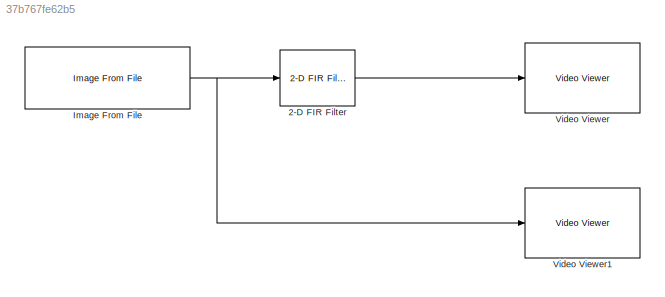
MODEL slx_37b767fe62b5
KIND model
BLOCK [Reference] 2-D FIR Filter  REF=visionfilter/2-D FIR Filter
  LockScale = off
  Ports = [1, 1]
  SourceBlock = visionfilter/2-D FIR Filter
  SourceType = 2-D FIR Filter
  accumDataTypeStr = Inherit: Same as product output
  accumFracLength = 10
  accumLastDataTypeStr = Inherit: Same as product output
  accumMode = Same as product output
  accumWordLength = 32
  filtSrc = Specify via dialog
  filterMtrx = [1 0; 0 -1]
  firstCoeffDataTypeStr = fixdt(1,16)
  firstCoeffFracLength = 14
  firstCoeffLastDataTypeStr = fixdt(1,16)
  firstCoeffMax = []
  firstCoeffMin = []
  firstCoeffMode = Specify word length
  firstCoeffSignedness = Signed
  firstCoeffWordLength = 16
  horizontalFilter = [4 0]
  method = Convolution
  outSize = Full
  outputDataTypeStr = Inherit: Same as input
  outputFracLength = 12
  outputLastDataTypeStr = Inherit: Same as input
  outputMax = []
  outputMin = []
  outputMode = Same as input
  outputSignedness = Auto
  outputWordLength = 32
  overflowMode = off
  padSrc = Specify via dialog
  padType = Constant
  padVal = 0
  prodOutputDataTypeStr = fixdt([],32,10)
  prodOutputFracLength = 10
  prodOutputLastDataTypeStr = fixdt([],32,10)
  prodOutputMode = Binary point scaling
  prodOutputWordLength = 32
  roundingMode = Floor
  separable = off
  verticalFilter = [4 0]
BLOCK [Reference] Image From File  REF=visionsources/Image From File
  FileName = Lena_256x256.bmp
  FractionLength = 15
  FractionLengthMode = User-defined
  ImageDataType = Inherit from input image
  OutPortLabels = R|G|B
  Ports = [0, 1]
  Signed = on
  SourceBlock = visionsources/Image From File
  SourceType = Image From File
  Tag = vipblks_nd
  Ts = inf
  WordLength = 16
  imagePorts = One multidimensional signal
  sdImageDataType = uint(8)
BLOCK [Reference] Video Viewer  REF=visionsinks/Video Viewer
  AxisZoom = on
  DefaultConfigurationName = vipscopes.VideoViewerScopeCfg
  FigPos = [496 722 410 337]
  OpenAtMdlStart = on
  Ports = [1]
  SourceBlock = visionsinks/Video Viewer
  SourceType = Video Viewer
  UserDataPersistent = on
  colormapValue = gray(256)
  imagePorts = One multidimensional signal
  inputType = Obsolete7b
  maxInputVal = 255
  minInputVal = 0
  specRange = off
  trueSizedOnce = off
  useColorMap = off
BLOCK [Reference] Video Viewer1  REF=visionsinks/Video Viewer
  AxisZoom = on
  DefaultConfigurationName = vipscopes.VideoViewerScopeCfg
  FigPos = [96 695 410 300]
  OpenAtMdlStart = on
  Ports = [1]
  SourceBlock = visionsinks/Video Viewer
  SourceType = Video Viewer
  UserDataPersistent = on
  colormapValue = gray(256)
  imagePorts = One multidimensional signal
  inputType = Obsolete7b
  maxInputVal = 255
  minInputVal = 0
  specRange = off
  trueSizedOnce = off
  useColorMap = off
LINE 2-D FIR Filter:1 -> Video Viewer:1
NET Image From File:1 -> 2-D FIR Filter:1, Video Viewer1:1
note: NET lines group one-source signal fan-out (src -> all destinations, sorted); 1:1 wires keep LINE
